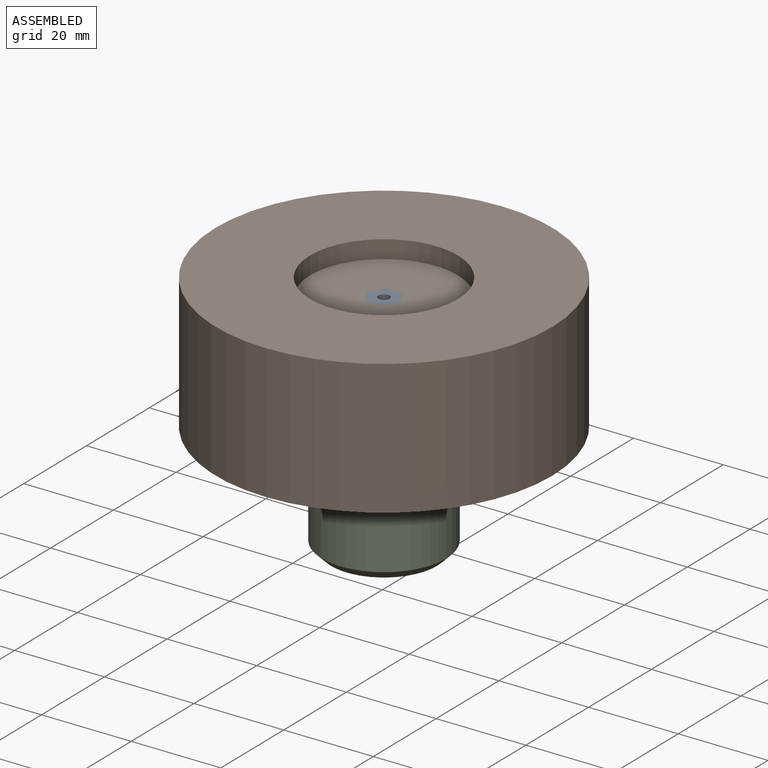
[diagram: assembled view]
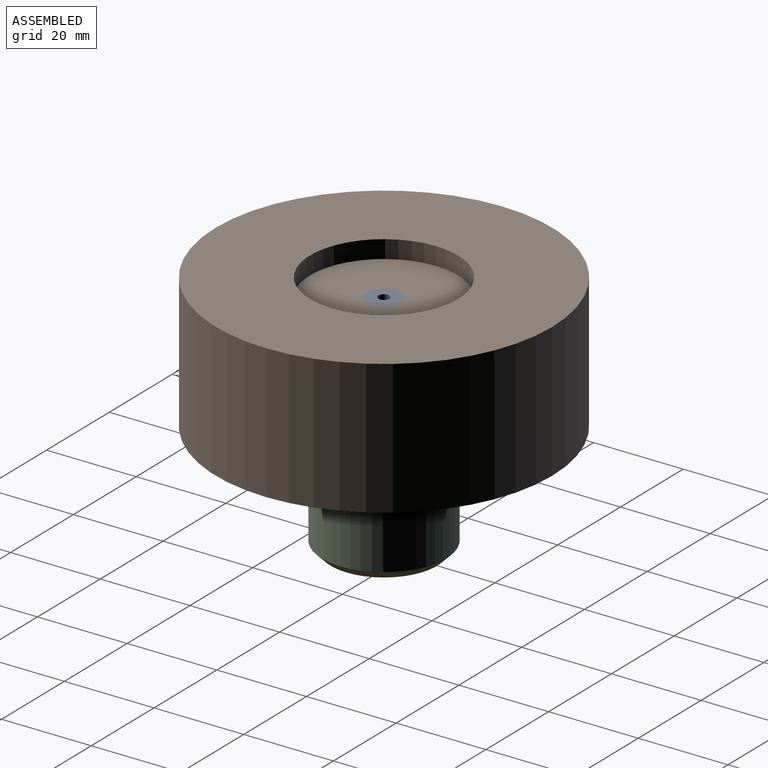
[diagram: assembled view, second angle]
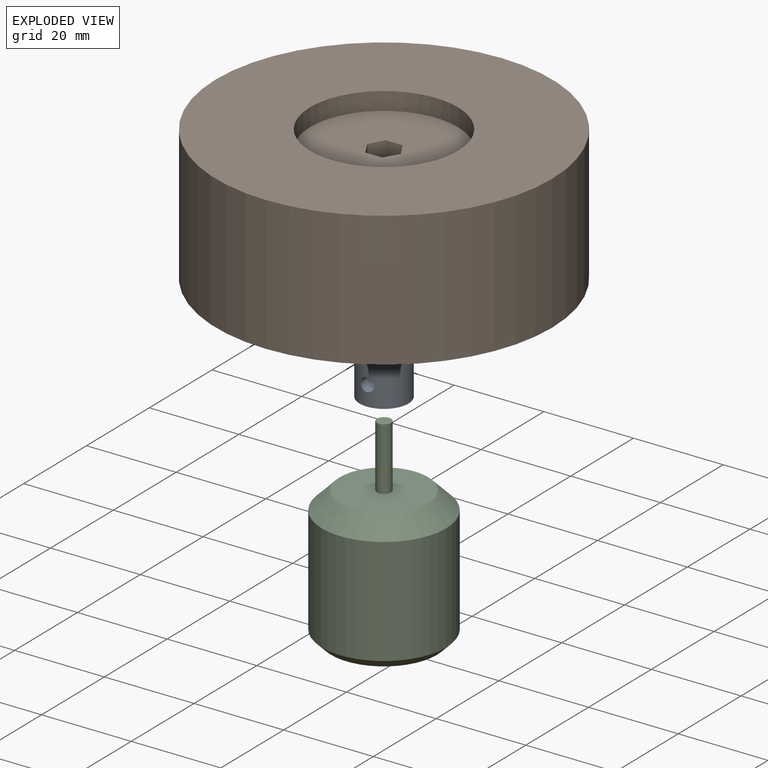
[diagram: exploded view]
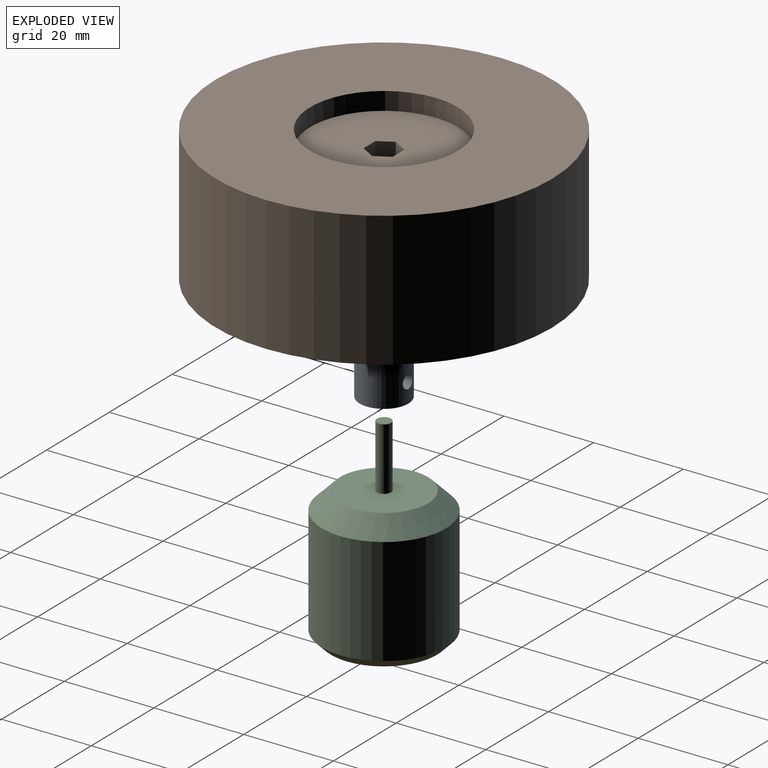
[diagram: exploded view, second angle]
ASSEMBLY  parts=3 mates=2
PART A: 15 faces, bbox 10.9x10.9x20 mm
  f0: cylinder r=1.25mm len=5mm, axis (0,0,-1), area 39.3mm2, adj f7,f12
  f1: plane 10x3.98mm, normal (1,0,0), area 39.8mm2, adj f2,f6,f7,f8
  f2: plane 10x3.45mm, normal (0.5,0.87,0), area 39.8mm2, adj f1,f3,f7,f8
  f3: plane 10x3.45mm, normal (-0.5,0.87,0), area 39.8mm2, adj f2,f4,f7,f8
  f4: plane 10x3.98mm, normal (-1,0,0), area 39.8mm2, adj f3,f5,f7,f8
  f5: plane 10x3.45mm, normal (-0.5,-0.87,0), area 39.8mm2, adj f4,f6,f7,f8
  f6: plane 10x3.45mm, normal (0.5,-0.87,0), area 39.8mm2, adj f1,f5,f7,f8
  f7: plane 7.97x6.9mm, normal (0,0,-1), area 36.3mm2, adj f0,f1,f2,f3,f4,f5,f6
  f8: plane 10.9x10.9mm, normal (0,0,-1), area 52.1mm2, adj f1,f2,f3,f4,f5,f6,f10
  f9: plane 10.9x10.9mm, normal (0,0,1), area 85.4mm2, adj f10,f11
  f10: cylinder r=5.45mm len=10.9mm, axis (0,0,-1), area 328.2mm2, adj f8,f9,f13,f14
  f11: cylinder r=1.59mm len=15mm, axis (0,0,1), area 132.7mm2, adj f9,f12,f13,f14
  f12: plane 3.18x3.18mm, normal (0,0,1), area 3mm2, adj f0,f11
  f13: cylinder r=1.5mm len=4.93mm, axis (1,0,0), area 39.8mm2, adj f10,f11
  f14: cylinder r=1.5mm len=4.93mm, axis (1,0,0), area 39.8mm2, adj f10,f11
PART B: 13 faces, bbox 75x75x30 mm
  f0: plane 33x33mm, normal (0,0,-1), area 818.7mm2, adj f1,f2,f3,f4,f5,f6,f11
  f1: plane 22x3.25mm, normal (-0.87,-0.5,0), area 82.6mm2, adj f0,f2,f6,f7
  f2: plane 22x3.25mm, normal (-0.87,0.5,0), area 82.6mm2, adj f0,f1,f3,f7
  f3: plane 22x3.75mm, normal (0,1,0), area 82.6mm2, adj f0,f2,f4,f7
  f4: plane 22x3.25mm, normal (0.87,0.5,0), area 82.6mm2, adj f0,f3,f5,f7
  f5: plane 22x3.25mm, normal (0.87,-0.5,0), area 82.6mm2, adj f0,f4,f6,f7
  f6: plane 22x3.75mm, normal (0,-1,0), area 82.6mm2, adj f0,f1,f5,f7
  f7: plane 33x33mm, normal (0,0,1), area 818.7mm2, adj f1,f2,f3,f4,f5,f6,f8
  f8: cylinder r=16.5mm len=33mm, axis (0,0,-1), area 414.7mm2, adj f7,f10
  f9: cylinder r=37.5mm len=75mm, axis (0,0,-1), area 7068.6mm2, adj f10,f12
  f10: plane 75x75mm, normal (0,0,1), area 3562.6mm2, adj f8,f9
  f11: cylinder r=16.5mm len=33mm, axis (0,0,1), area 414.7mm2, adj f0,f12
  f12: plane 75x75mm, normal (0,0,-1), area 3562.6mm2, adj f9,f11
PART C: 15 faces, bbox 27.7x27.7x44 mm
  f0: cylinder r=13.85mm len=27.7mm, axis (0,0,-1), area 2088.5mm2, adj f3,f6
  f1: plane 19.7x19.7mm, normal (0,0,1), area 296.9mm2, adj f3,f4
  f2: plane 23.7x23.7mm, normal (0,0,-1), area 412.9mm2, adj f6,f7,f9,f11,f13
  f3: cone r=9.85mm half-angle=45deg, axis (0,0,-1), area 421.2mm2, adj f0,f1
  f4: cylinder r=1.59mm len=14mm, axis (0,0,-1), area 139.6mm2, adj f1,f5
  f5: plane 3.18x3.18mm, normal (0,0,1), area 7.9mm2, adj f4
  f6: cone r=13.85mm half-angle=45deg, axis (0,0,1), area 228.4mm2, adj f0,f2
  f7: cylinder r=1.5mm len=5mm, axis (0,0,-1), area 47.1mm2, adj f2,f8
  f8: plane 3x3mm, normal (0,0,-1), area 7.1mm2, adj f7
  f9: cylinder r=1.5mm len=5mm, axis (0,0,-1), area 47.1mm2, adj f2,f10
  f10: plane 3x3mm, normal (0,0,-1), area 7.1mm2, adj f9
  f11: cylinder r=1.5mm len=5mm, axis (0,0,-1), area 47.1mm2, adj f2,f12
  f12: plane 3x3mm, normal (0,0,-1), area 7.1mm2, adj f11
  f13: cylinder r=1.5mm len=5mm, axis (0,0,-1), area 47.1mm2, adj f2,f14
  f14: plane 3x3mm, normal (0,0,-1), area 7.1mm2, adj f13
PLACE A rot(axis=(0.71,0.71,0),180deg) t=(-46.2,-22.66,30.6)mm
PLACE B t=(-45.32,-20.43,8.6)mm
PLACE C t=(-45.32,-20.43,-20.4)mm
MATE revolute A.f0 <-> C.f0  axis (0,0,-1) through (-45.32,-20.43,25.6)mm
MATE fastened A.f0 <-> B.f8  axis (0,0,1) through (-45.32,-20.43,30.6)mm
